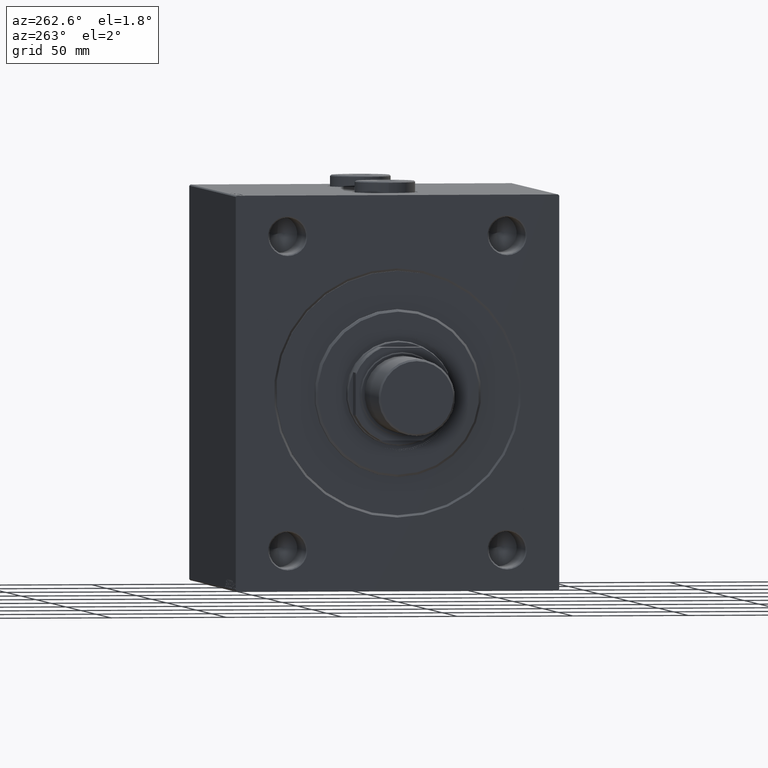
[diagram: clean part render]
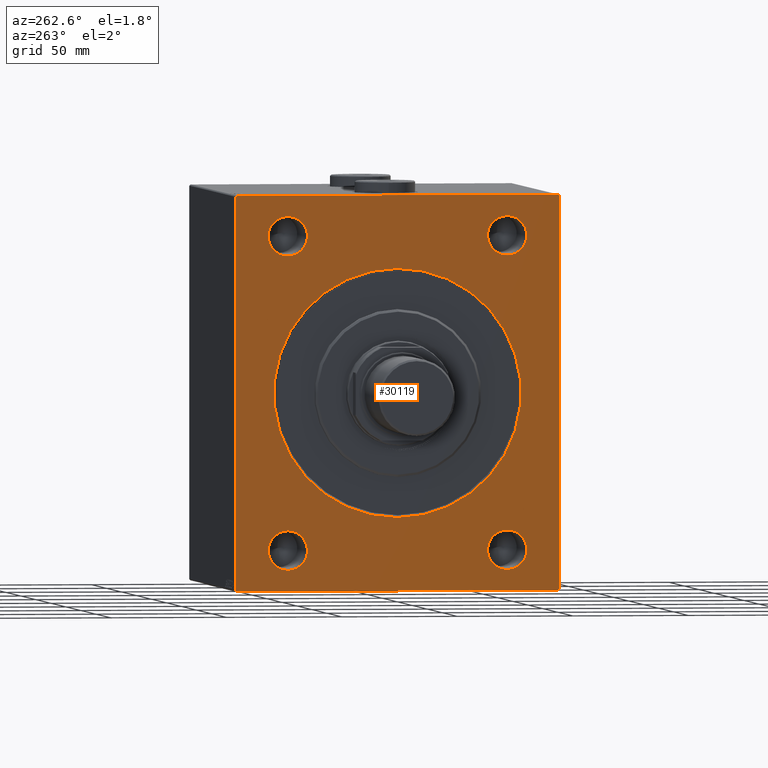
[diagram: same view with one face highlighted and labeled with its STEP entity id]
A machine part, auxiliary view. The second image highlights one B-rep face of the part: STEP entity #30119.
In plain terms, the highlighted planar face has unit normal (1, 0, 0).
Its self-contained STEP definition (entity closure, byte-faithful):
#66 = ORIENTED_EDGE ( 'NONE', *, *, #12504, .F. ) ;
#109 = EDGE_CURVE ( 'NONE', #25031, #10985, #13679, .T. ) ;
#169 = VECTOR ( 'NONE', #15350, 1000.000000000000000 ) ;
#815 = DIRECTION ( 'NONE',  ( 0.000000000000000000, -8.163404592832031500E-17, 1.000000000000000000 ) ) ;
#1088 = VERTEX_POINT ( 'NONE', #27206 ) ;
#1857 = ORIENTED_EDGE ( 'NONE', *, *, #28621, .T. ) ;
#1952 = LINE ( 'NONE', #44463, #3531 ) ;
#2039 = DIRECTION ( 'NONE',  ( 1.000000000000000000, 0.000000000000000000, 0.000000000000000000 ) ) ;
#2076 = AXIS2_PLACEMENT_3D ( 'NONE', #33622, #41340, #22671 ) ;
#2602 = EDGE_CURVE ( 'NONE', #36822, #14518, #4246, .T. ) ;
#2704 = LINE ( 'NONE', #24206, #35762 ) ;
#2833 = VERTEX_POINT ( 'NONE', #18609 ) ;
#2893 = FACE_BOUND ( 'NONE', #44241, .T. ) ;
#2948 = AXIS2_PLACEMENT_3D ( 'NONE', #29396, #22389, #25430 ) ;
#3302 = ORIENTED_EDGE ( 'NONE', *, *, #8649, .T. ) ;
#3531 = VECTOR ( 'NONE', #30655, 1000.000000000000000 ) ;
#3535 = AXIS2_PLACEMENT_3D ( 'NONE', #3738, #24549, #6553 ) ;
#3672 = ORIENTED_EDGE ( 'NONE', *, *, #10646, .T. ) ;
#3738 = CARTESIAN_POINT ( 'NONE',  ( 0.000000000000000000, -47.50000000000000000, 67.49999999999998579 ) ) ;
#3747 = EDGE_CURVE ( 'NONE', #41933, #38535, #40827, .T. ) ;
#4141 = VERTEX_POINT ( 'NONE', #9635 ) ;
#4246 = CIRCLE ( 'NONE', #40801, 8.500000000000007105 ) ;
#4309 = AXIS2_PLACEMENT_3D ( 'NONE', #20186, #20869, #9647 ) ;
#4339 = CARTESIAN_POINT ( 'NONE',  ( 0.000000000000000000, -70.00000000000000000, -84.49999999999998579 ) ) ;
#4340 = AXIS2_PLACEMENT_3D ( 'NONE', #32943, #29919, #4934 ) ;
#4649 = VERTEX_POINT ( 'NONE', #24663 ) ;
#4835 = ORIENTED_EDGE ( 'NONE', *, *, #27699, .T. ) ;
#4890 = EDGE_LOOP ( 'NONE', ( #20734, #15092 ) ) ;
#4934 = DIRECTION ( 'NONE',  ( 0.000000000000000000, 0.000000000000000000, -1.000000000000000000 ) ) ;
#5209 = CARTESIAN_POINT ( 'NONE',  ( 0.000000000000000000, 47.50000000000000000, 76.00000000000000000 ) ) ;
#5834 = CIRCLE ( 'NONE', #4340, 53.50000000000000000 ) ;
#5905 = CIRCLE ( 'NONE', #17844, 8.500000000000007105 ) ;
#6553 = DIRECTION ( 'NONE',  ( 0.000000000000000000, 0.000000000000000000, -1.000000000000000000 ) ) ;
#6615 = FACE_OUTER_BOUND ( 'NONE', #21780, .T. ) ;
#7166 = LINE ( 'NONE', #31919, #44849 ) ;
#7219 = EDGE_CURVE ( 'NONE', #12120, #27422, #1952, .T. ) ;
#7238 = CARTESIAN_POINT ( 'NONE',  ( 0.000000000000000000, 70.00000000000001421, -84.50000000000000000 ) ) ;
#7570 = LINE ( 'NONE', #39815, #25277 ) ;
#8113 = LINE ( 'NONE', #36143, #169 ) ;
#8263 = VERTEX_POINT ( 'NONE', #22023 ) ;
#8649 = EDGE_CURVE ( 'NONE', #14518, #36822, #35622, .T. ) ;
#8785 = CARTESIAN_POINT ( 'NONE',  ( 0.000000000000000000, 47.50000000000000000, -67.50000000000001421 ) ) ;
#9435 = EDGE_LOOP ( 'NONE', ( #3672, #42222 ) ) ;
#9635 = CARTESIAN_POINT ( 'NONE',  ( 0.000000000000000000, 0.000000000000000000, 53.50000000000000000 ) ) ;
#9647 = DIRECTION ( 'NONE',  ( 0.000000000000000000, 0.000000000000000000, -1.000000000000000000 ) ) ;
#9814 = DIRECTION ( 'NONE',  ( 0.000000000000000000, 0.000000000000000000, -1.000000000000000000 ) ) ;
#10184 = EDGE_LOOP ( 'NONE', ( #28925, #3302 ) ) ;
#10388 = AXIS2_PLACEMENT_3D ( 'NONE', #20946, #2039, #16519 ) ;
#10646 = EDGE_CURVE ( 'NONE', #4141, #2833, #5834, .T. ) ;
#10841 = CARTESIAN_POINT ( 'NONE',  ( 0.000000000000000000, 47.50000000000000000, -76.00000000000002842 ) ) ;
#10985 = VERTEX_POINT ( 'NONE', #45022 ) ;
#11186 = LINE ( 'NONE', #31584, #41657 ) ;
#12004 = CARTESIAN_POINT ( 'NONE',  ( 0.000000000000000000, -69.49999999999997158, 84.99999999999998579 ) ) ;
#12120 = VERTEX_POINT ( 'NONE', #35427 ) ;
#12141 = EDGE_CURVE ( 'NONE', #38535, #41933, #5905, .T. ) ;
#12398 = ORIENTED_EDGE ( 'NONE', *, *, #109, .T. ) ;
#12504 = EDGE_CURVE ( 'NONE', #25031, #45598, #7570, .T. ) ;
#12640 = CIRCLE ( 'NONE', #2948, 8.500000000000007105 ) ;
#13498 = VERTEX_POINT ( 'NONE', #30434 ) ;
#13679 = LINE ( 'NONE', #20930, #39987 ) ;
#13899 = DIRECTION ( 'NONE',  ( 0.000000000000000000, -0.7071067811865574537, -0.7071067811865376918 ) ) ;
#13937 = CARTESIAN_POINT ( 'NONE',  ( 0.000000000000000000, 47.50000000000000000, -67.50000000000001421 ) ) ;
#14331 = EDGE_CURVE ( 'NONE', #13498, #10985, #2704, .T. ) ;
#14518 = VERTEX_POINT ( 'NONE', #17865 ) ;
#15092 = ORIENTED_EDGE ( 'NONE', *, *, #35068, .T. ) ;
#15350 = DIRECTION ( 'NONE',  ( 0.000000000000000000, 0.000000000000000000, -1.000000000000000000 ) ) ;
#15756 = AXIS2_PLACEMENT_3D ( 'NONE', #39014, #43378, #9814 ) ;
#16384 = CIRCLE ( 'NONE', #10388, 8.500000000000007105 ) ;
#16519 = DIRECTION ( 'NONE',  ( 0.000000000000000000, 0.000000000000000000, -1.000000000000000000 ) ) ;
#17311 = DIRECTION ( 'NONE',  ( 0.000000000000000000, 0.000000000000000000, -1.000000000000000000 ) ) ;
#17844 = AXIS2_PLACEMENT_3D ( 'NONE', #8785, #26560, #40330 ) ;
#17865 = CARTESIAN_POINT ( 'NONE',  ( 0.000000000000000000, 47.50000000000000000, 58.99999999999998579 ) ) ;
#18000 = DIRECTION ( 'NONE',  ( -0.000000000000000000, -0.7071067811865376918, 0.7071067811865574537 ) ) ;
#18212 = EDGE_CURVE ( 'NONE', #19244, #27422, #7166, .T. ) ;
#18609 = CARTESIAN_POINT ( 'NONE',  ( 0.000000000000000000, 6.551860375438339893E-15, -53.50000000000000000 ) ) ;
#19028 = VERTEX_POINT ( 'NONE', #4339 ) ;
#19244 = VERTEX_POINT ( 'NONE', #25083 ) ;
#20186 = CARTESIAN_POINT ( 'NONE',  ( 0.000000000000000000, 0.000000000000000000, 0.000000000000000000 ) ) ;
#20734 = ORIENTED_EDGE ( 'NONE', *, *, #34228, .T. ) ;
#20869 = DIRECTION ( 'NONE',  ( 1.000000000000000000, 0.000000000000000000, 0.000000000000000000 ) ) ;
#20930 = CARTESIAN_POINT ( 'NONE',  ( 0.000000000000000000, 70.00000000000001421, -84.50000000000000000 ) ) ;
#20946 = CARTESIAN_POINT ( 'NONE',  ( 0.000000000000000000, -47.50000000000000000, -67.50000000000001421 ) ) ;
#21435 = AXIS2_PLACEMENT_3D ( 'NONE', #13937, #35206, #25155 ) ;
#21780 = EDGE_LOOP ( 'NONE', ( #26728, #44347, #23485, #4835, #66, #12398, #34161, #27627 ) ) ;
#22023 = CARTESIAN_POINT ( 'NONE',  ( 0.000000000000000000, -47.50000000000000000, 76.00000000000000000 ) ) ;
#22181 = DIRECTION ( 'NONE',  ( -0.000000000000000000, 0.7071067811865181518, -0.7071067811865769936 ) ) ;
#22389 = DIRECTION ( 'NONE',  ( 1.000000000000000000, 0.000000000000000000, 0.000000000000000000 ) ) ;
#22671 = DIRECTION ( 'NONE',  ( 0.000000000000000000, 0.000000000000000000, -1.000000000000000000 ) ) ;
#22683 = DIRECTION ( 'NONE',  ( 1.000000000000000000, 0.000000000000000000, 0.000000000000000000 ) ) ;
#23055 = ORIENTED_EDGE ( 'NONE', *, *, #28583, .T. ) ;
#23485 = ORIENTED_EDGE ( 'NONE', *, *, #18212, .F. ) ;
#24159 = FACE_BOUND ( 'NONE', #9435, .T. ) ;
#24206 = CARTESIAN_POINT ( 'NONE',  ( 0.000000000000000000, -70.00000000000000000, -85.00000000000000000 ) ) ;
#24543 = EDGE_CURVE ( 'NONE', #12120, #19028, #8113, .T. ) ;
#24549 = DIRECTION ( 'NONE',  ( 1.000000000000000000, 0.000000000000000000, 0.000000000000000000 ) ) ;
#24663 = CARTESIAN_POINT ( 'NONE',  ( 0.000000000000000000, -47.50000000000000000, -59.00000000000001421 ) ) ;
#25031 = VERTEX_POINT ( 'NONE', #7238 ) ;
#25083 = CARTESIAN_POINT ( 'NONE',  ( 0.000000000000000000, 69.50000000000000000, 85.00000000000001421 ) ) ;
#25144 = AXIS2_PLACEMENT_3D ( 'NONE', #31979, #39473, #17311 ) ;
#25155 = DIRECTION ( 'NONE',  ( 0.000000000000000000, 0.000000000000000000, -1.000000000000000000 ) ) ;
#25277 = VECTOR ( 'NONE', #815, 1000.000000000000000 ) ;
#25430 = DIRECTION ( 'NONE',  ( 0.000000000000000000, 0.000000000000000000, -1.000000000000000000 ) ) ;
#26560 = DIRECTION ( 'NONE',  ( 1.000000000000000000, 0.000000000000000000, 0.000000000000000000 ) ) ;
#26728 = ORIENTED_EDGE ( 'NONE', *, *, #24543, .F. ) ;
#26882 = DIRECTION ( 'NONE',  ( 0.000000000000000000, 0.000000000000000000, -1.000000000000000000 ) ) ;
#27206 = CARTESIAN_POINT ( 'NONE',  ( 0.000000000000000000, -47.50000000000000000, -76.00000000000002842 ) ) ;
#27422 = VERTEX_POINT ( 'NONE', #12004 ) ;
#27627 = ORIENTED_EDGE ( 'NONE', *, *, #29447, .T. ) ;
#27699 = EDGE_CURVE ( 'NONE', #19244, #45598, #11186, .T. ) ;
#28141 = CIRCLE ( 'NONE', #3535, 8.500000000000007105 ) ;
#28583 = EDGE_CURVE ( 'NONE', #8263, #45946, #40826, .T. ) ;
#28621 = EDGE_CURVE ( 'NONE', #45946, #8263, #28141, .T. ) ;
#28732 = CARTESIAN_POINT ( 'NONE',  ( 0.000000000000000000, -69.50000000000000000, -85.00000000000000000 ) ) ;
#28925 = ORIENTED_EDGE ( 'NONE', *, *, #2602, .T. ) ;
#29396 = CARTESIAN_POINT ( 'NONE',  ( 0.000000000000000000, -47.50000000000000000, -67.50000000000001421 ) ) ;
#29447 = EDGE_CURVE ( 'NONE', #13498, #19028, #42291, .T. ) ;
#29919 = DIRECTION ( 'NONE',  ( 1.000000000000000000, 0.000000000000000000, 0.000000000000000000 ) ) ;
#30119 = ADVANCED_FACE ( 'NONE', ( #24159, #38839, #38384, #31359, #2893, #6615 ), #42123, .F. ) ;
#30434 = CARTESIAN_POINT ( 'NONE',  ( 0.000000000000000000, -69.50000000000000000, -85.00000000000000000 ) ) ;
#30637 = CIRCLE ( 'NONE', #15756, 53.50000000000000000 ) ;
#30655 = DIRECTION ( 'NONE',  ( -0.000000000000000000, 0.7071067811865672237, 0.7071067811865279218 ) ) ;
#31359 = FACE_BOUND ( 'NONE', #10184, .T. ) ;
#31584 = CARTESIAN_POINT ( 'NONE',  ( 0.000000000000000000, 69.50000000000000000, 85.00000000000001421 ) ) ;
#31638 = DIRECTION ( 'NONE',  ( 0.000000000000000000, 1.000000000000000000, 0.000000000000000000 ) ) ;
#31919 = CARTESIAN_POINT ( 'NONE',  ( 0.000000000000000000, 70.00000000000000000, 85.00000000000001421 ) ) ;
#31979 = CARTESIAN_POINT ( 'NONE',  ( 0.000000000000000000, -47.50000000000000000, 67.49999999999998579 ) ) ;
#32943 = CARTESIAN_POINT ( 'NONE',  ( 0.000000000000000000, 0.000000000000000000, 0.000000000000000000 ) ) ;
#33025 = CARTESIAN_POINT ( 'NONE',  ( 0.000000000000000000, 70.00000000000000000, 84.49999999999997158 ) ) ;
#33244 = ORIENTED_EDGE ( 'NONE', *, *, #12141, .T. ) ;
#33394 = CARTESIAN_POINT ( 'NONE',  ( 0.000000000000000000, 47.50000000000000000, 67.49999999999998579 ) ) ;
#33622 = CARTESIAN_POINT ( 'NONE',  ( 0.000000000000000000, 47.50000000000000000, 67.49999999999998579 ) ) ;
#34161 = ORIENTED_EDGE ( 'NONE', *, *, #14331, .F. ) ;
#34228 = EDGE_CURVE ( 'NONE', #4649, #1088, #16384, .T. ) ;
#35068 = EDGE_CURVE ( 'NONE', #1088, #4649, #12640, .T. ) ;
#35206 = DIRECTION ( 'NONE',  ( 1.000000000000000000, 0.000000000000000000, 0.000000000000000000 ) ) ;
#35427 = CARTESIAN_POINT ( 'NONE',  ( 0.000000000000000000, -70.00000000000000000, 84.49999999999998579 ) ) ;
#35622 = CIRCLE ( 'NONE', #2076, 8.500000000000007105 ) ;
#35762 = VECTOR ( 'NONE', #31638, 1000.000000000000000 ) ;
#36143 = CARTESIAN_POINT ( 'NONE',  ( 0.000000000000000000, -70.00000000000000000, 84.99999999999998579 ) ) ;
#36404 = EDGE_LOOP ( 'NONE', ( #23055, #1857 ) ) ;
#36822 = VERTEX_POINT ( 'NONE', #5209 ) ;
#38287 = EDGE_CURVE ( 'NONE', #2833, #4141, #30637, .T. ) ;
#38384 = FACE_BOUND ( 'NONE', #36404, .T. ) ;
#38535 = VERTEX_POINT ( 'NONE', #10841 ) ;
#38839 = FACE_BOUND ( 'NONE', #4890, .T. ) ;
#39014 = CARTESIAN_POINT ( 'NONE',  ( 0.000000000000000000, 0.000000000000000000, 0.000000000000000000 ) ) ;
#39473 = DIRECTION ( 'NONE',  ( 1.000000000000000000, 0.000000000000000000, 0.000000000000000000 ) ) ;
#39815 = CARTESIAN_POINT ( 'NONE',  ( 0.000000000000000000, 70.00000000000001421, -85.00000000000000000 ) ) ;
#39987 = VECTOR ( 'NONE', #13899, 999.9999999999998863 ) ;
#40330 = DIRECTION ( 'NONE',  ( 0.000000000000000000, 0.000000000000000000, -1.000000000000000000 ) ) ;
#40801 = AXIS2_PLACEMENT_3D ( 'NONE', #33394, #22683, #26882 ) ;
#40826 = CIRCLE ( 'NONE', #25144, 8.500000000000007105 ) ;
#40827 = CIRCLE ( 'NONE', #21435, 8.500000000000007105 ) ;
#40922 = CARTESIAN_POINT ( 'NONE',  ( 0.000000000000000000, -47.50000000000000000, 58.99999999999998579 ) ) ;
#41340 = DIRECTION ( 'NONE',  ( 1.000000000000000000, 0.000000000000000000, 0.000000000000000000 ) ) ;
#41657 = VECTOR ( 'NONE', #22181, 1000.000000000000000 ) ;
#41933 = VERTEX_POINT ( 'NONE', #42144 ) ;
#42123 = PLANE ( 'NONE',  #4309 ) ;
#42144 = CARTESIAN_POINT ( 'NONE',  ( 0.000000000000000000, 47.50000000000000000, -59.00000000000001421 ) ) ;
#42222 = ORIENTED_EDGE ( 'NONE', *, *, #38287, .T. ) ;
#42291 = LINE ( 'NONE', #28732, #43044 ) ;
#43044 = VECTOR ( 'NONE', #18000, 999.9999999999998863 ) ;
#43378 = DIRECTION ( 'NONE',  ( 1.000000000000000000, 0.000000000000000000, 0.000000000000000000 ) ) ;
#43951 = ORIENTED_EDGE ( 'NONE', *, *, #3747, .T. ) ;
#44241 = EDGE_LOOP ( 'NONE', ( #43951, #33244 ) ) ;
#44347 = ORIENTED_EDGE ( 'NONE', *, *, #7219, .T. ) ;
#44463 = CARTESIAN_POINT ( 'NONE',  ( 0.000000000000000000, -70.00000000000000000, 84.49999999999998579 ) ) ;
#44849 = VECTOR ( 'NONE', #46177, 1000.000000000000000 ) ;
#45022 = CARTESIAN_POINT ( 'NONE',  ( 0.000000000000000000, 69.50000000000000000, -85.00000000000000000 ) ) ;
#45598 = VERTEX_POINT ( 'NONE', #33025 ) ;
#45946 = VERTEX_POINT ( 'NONE', #40922 ) ;
#46177 = DIRECTION ( 'NONE',  ( 0.000000000000000000, -1.000000000000000000, -1.982541115402065110E-16 ) ) ;